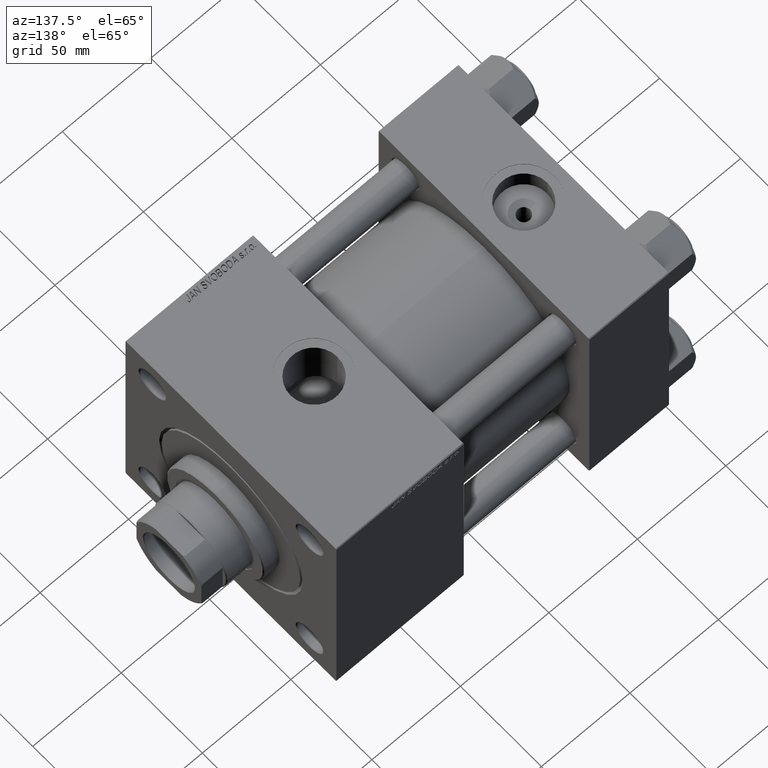
[diagram: clean part render]
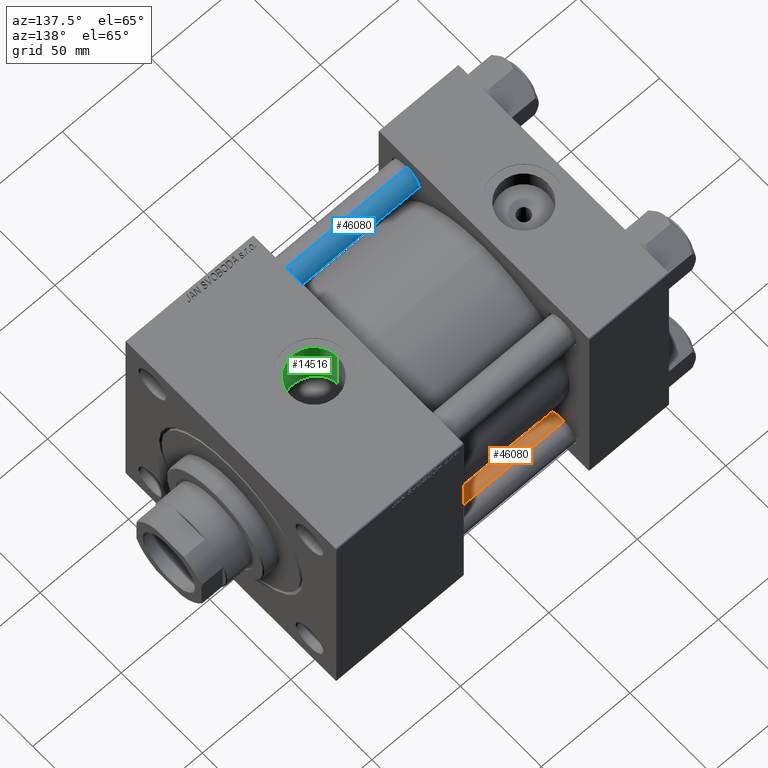
[diagram: same view with three faces highlighted in distinct colors, each labeled with its STEP entity id]
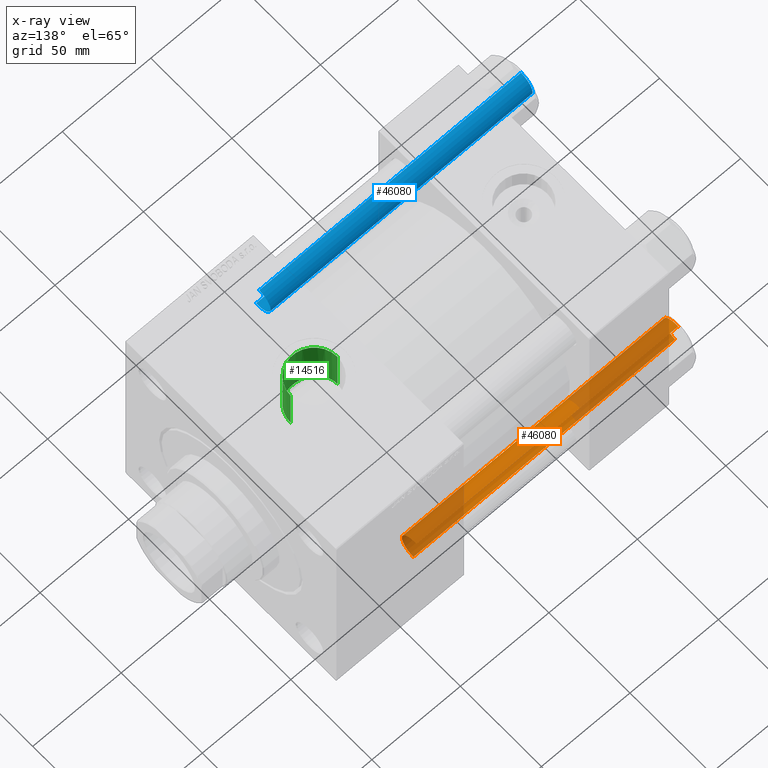
[diagram: x-ray of the same camera — body ghosted, the three highlighted faces saturated]
A machine part, auxiliary view with three faces highlighted in distinct colors.
The next image is the same camera in x-ray (body ghosted, the three faces saturated) — at least one of them is partly hidden behind the body in this view.
Their STEP definitions:

[orange] entity #46080 — the highlighted cylindrical surface (edge-blend (fillet) strip) has radius 8 mm, axis along (1, -0, 0).
#105 = EDGE_LOOP ( 'NONE', ( #20866, #13563, #15146, #23375 ) ) ;
#2549 = AXIS2_PLACEMENT_3D ( 'NONE', #16216, #46929, #34877 ) ;
#4036 = VECTOR ( 'NONE', #10144, 1000.000000000000000 ) ;
#4076 = EDGE_CURVE ( 'NONE', #34692, #27802, #25944, .T. ) ;
#5951 = DIRECTION ( 'NONE',  ( -0.000000000000000000, -0.000000000000000000, 1.000000000000000000 ) ) ;
#6333 = DIRECTION ( 'NONE',  ( 1.000000000000000000, 0.000000000000000000, 0.000000000000000000 ) ) ;
#10144 = DIRECTION ( 'NONE',  ( -0.000000000000000000, -0.000000000000000000, -1.000000000000000000 ) ) ;
#13563 = ORIENTED_EDGE ( 'NONE', *, *, #25576, .T. ) ;
#14269 = DIRECTION ( 'NONE',  ( 0.000000000000000000, 0.000000000000000000, -1.000000000000000000 ) ) ;
#14798 = CARTESIAN_POINT ( 'NONE',  ( 0.000000000000000000, 0.000000000000000000, 148.5000000000000000 ) ) ;
#15146 = ORIENTED_EDGE ( 'NONE', *, *, #17041, .T. ) ;
#16216 = CARTESIAN_POINT ( 'NONE',  ( 0.000000000000000000, 0.000000000000000000, 149.0000000000000000 ) ) ;
#17041 = EDGE_CURVE ( 'NONE', #35857, #35714, #32929, .T. ) ;
#20866 = ORIENTED_EDGE ( 'NONE', *, *, #4076, .F. ) ;
#23138 = CYLINDRICAL_SURFACE ( 'NONE', #2549, 8.000000000000000000 ) ;
#23375 = ORIENTED_EDGE ( 'NONE', *, *, #34793, .T. ) ;
#24126 = AXIS2_PLACEMENT_3D ( 'NONE', #14798, #14269, #6333 ) ;
#24443 = AXIS2_PLACEMENT_3D ( 'NONE', #48476, #5951, #37436 ) ;
#25576 = EDGE_CURVE ( 'NONE', #34692, #35857, #46162, .T. ) ;
#25882 = CARTESIAN_POINT ( 'NONE',  ( -8.000000000000000000, 0.000000000000000000, 0.5000000000000281997 ) ) ;
#25944 = LINE ( 'NONE', #26451, #45356 ) ;
#26451 = CARTESIAN_POINT ( 'NONE',  ( 8.000000000000000000, 9.797174393178825657E-16, 149.0000000000000000 ) ) ;
#27802 = VERTEX_POINT ( 'NONE', #49761 ) ;
#28791 = CARTESIAN_POINT ( 'NONE',  ( 8.000000000000000000, 9.797174393178825657E-16, 148.5000000000000000 ) ) ;
#29102 = CARTESIAN_POINT ( 'NONE',  ( -8.000000000000000000, 0.000000000000000000, 149.0000000000000000 ) ) ;
#29967 = CARTESIAN_POINT ( 'NONE',  ( -8.000000000000000000, 0.000000000000000000, 148.5000000000000000 ) ) ;
#32929 = LINE ( 'NONE', #29102, #4036 ) ;
#34692 = VERTEX_POINT ( 'NONE', #28791 ) ;
#34793 = EDGE_CURVE ( 'NONE', #35714, #27802, #43999, .T. ) ;
#34877 = DIRECTION ( 'NONE',  ( -1.000000000000000000, 0.000000000000000000, 0.000000000000000000 ) ) ;
#35714 = VERTEX_POINT ( 'NONE', #25882 ) ;
#35857 = VERTEX_POINT ( 'NONE', #29967 ) ;
#37436 = DIRECTION ( 'NONE',  ( 1.000000000000000000, 0.000000000000000000, 0.000000000000000000 ) ) ;
#39493 = FACE_OUTER_BOUND ( 'NONE', #105, .T. ) ;
#41543 = DIRECTION ( 'NONE',  ( -0.000000000000000000, -0.000000000000000000, -1.000000000000000000 ) ) ;
#43999 = CIRCLE ( 'NONE', #24443, 8.000000000000000000 ) ;
#45356 = VECTOR ( 'NONE', #41543, 1000.000000000000000 ) ;
#46080 = ADVANCED_FACE ( 'NONE', ( #39493 ), #23138, .T. ) ;
#46162 = CIRCLE ( 'NONE', #24126, 8.000000000000000000 ) ;
#46929 = DIRECTION ( 'NONE',  ( -0.000000000000000000, -0.000000000000000000, -1.000000000000000000 ) ) ;
#48476 = CARTESIAN_POINT ( 'NONE',  ( 0.000000000000000000, 0.000000000000000000, 0.5000000000000281997 ) ) ;
#49761 = CARTESIAN_POINT ( 'NONE',  ( 8.000000000000000000, 9.797174393178825657E-16, 0.5000000000000281997 ) ) ;

[blue] entity #46080 — the highlighted cylindrical surface (edge-blend (fillet) strip) has radius 8 mm, axis along (1, 0, -0).
#105 = EDGE_LOOP ( 'NONE', ( #20866, #13563, #15146, #23375 ) ) ;
#2549 = AXIS2_PLACEMENT_3D ( 'NONE', #16216, #46929, #34877 ) ;
#4036 = VECTOR ( 'NONE', #10144, 1000.000000000000000 ) ;
#4076 = EDGE_CURVE ( 'NONE', #34692, #27802, #25944, .T. ) ;
#5951 = DIRECTION ( 'NONE',  ( -0.000000000000000000, -0.000000000000000000, 1.000000000000000000 ) ) ;
#6333 = DIRECTION ( 'NONE',  ( 1.000000000000000000, 0.000000000000000000, 0.000000000000000000 ) ) ;
#10144 = DIRECTION ( 'NONE',  ( -0.000000000000000000, -0.000000000000000000, -1.000000000000000000 ) ) ;
#13563 = ORIENTED_EDGE ( 'NONE', *, *, #25576, .T. ) ;
#14269 = DIRECTION ( 'NONE',  ( 0.000000000000000000, 0.000000000000000000, -1.000000000000000000 ) ) ;
#14798 = CARTESIAN_POINT ( 'NONE',  ( 0.000000000000000000, 0.000000000000000000, 148.5000000000000000 ) ) ;
#15146 = ORIENTED_EDGE ( 'NONE', *, *, #17041, .T. ) ;
#16216 = CARTESIAN_POINT ( 'NONE',  ( 0.000000000000000000, 0.000000000000000000, 149.0000000000000000 ) ) ;
#17041 = EDGE_CURVE ( 'NONE', #35857, #35714, #32929, .T. ) ;
#20866 = ORIENTED_EDGE ( 'NONE', *, *, #4076, .F. ) ;
#23138 = CYLINDRICAL_SURFACE ( 'NONE', #2549, 8.000000000000000000 ) ;
#23375 = ORIENTED_EDGE ( 'NONE', *, *, #34793, .T. ) ;
#24126 = AXIS2_PLACEMENT_3D ( 'NONE', #14798, #14269, #6333 ) ;
#24443 = AXIS2_PLACEMENT_3D ( 'NONE', #48476, #5951, #37436 ) ;
#25576 = EDGE_CURVE ( 'NONE', #34692, #35857, #46162, .T. ) ;
#25882 = CARTESIAN_POINT ( 'NONE',  ( -8.000000000000000000, 0.000000000000000000, 0.5000000000000281997 ) ) ;
#25944 = LINE ( 'NONE', #26451, #45356 ) ;
#26451 = CARTESIAN_POINT ( 'NONE',  ( 8.000000000000000000, 9.797174393178825657E-16, 149.0000000000000000 ) ) ;
#27802 = VERTEX_POINT ( 'NONE', #49761 ) ;
#28791 = CARTESIAN_POINT ( 'NONE',  ( 8.000000000000000000, 9.797174393178825657E-16, 148.5000000000000000 ) ) ;
#29102 = CARTESIAN_POINT ( 'NONE',  ( -8.000000000000000000, 0.000000000000000000, 149.0000000000000000 ) ) ;
#29967 = CARTESIAN_POINT ( 'NONE',  ( -8.000000000000000000, 0.000000000000000000, 148.5000000000000000 ) ) ;
#32929 = LINE ( 'NONE', #29102, #4036 ) ;
#34692 = VERTEX_POINT ( 'NONE', #28791 ) ;
#34793 = EDGE_CURVE ( 'NONE', #35714, #27802, #43999, .T. ) ;
#34877 = DIRECTION ( 'NONE',  ( -1.000000000000000000, 0.000000000000000000, 0.000000000000000000 ) ) ;
#35714 = VERTEX_POINT ( 'NONE', #25882 ) ;
#35857 = VERTEX_POINT ( 'NONE', #29967 ) ;
#37436 = DIRECTION ( 'NONE',  ( 1.000000000000000000, 0.000000000000000000, 0.000000000000000000 ) ) ;
#39493 = FACE_OUTER_BOUND ( 'NONE', #105, .T. ) ;
#41543 = DIRECTION ( 'NONE',  ( -0.000000000000000000, -0.000000000000000000, -1.000000000000000000 ) ) ;
#43999 = CIRCLE ( 'NONE', #24443, 8.000000000000000000 ) ;
#45356 = VECTOR ( 'NONE', #41543, 1000.000000000000000 ) ;
#46080 = ADVANCED_FACE ( 'NONE', ( #39493 ), #23138, .T. ) ;
#46162 = CIRCLE ( 'NONE', #24126, 8.000000000000000000 ) ;
#46929 = DIRECTION ( 'NONE',  ( -0.000000000000000000, -0.000000000000000000, -1.000000000000000000 ) ) ;
#48476 = CARTESIAN_POINT ( 'NONE',  ( 0.000000000000000000, 0.000000000000000000, 0.5000000000000281997 ) ) ;
#49761 = CARTESIAN_POINT ( 'NONE',  ( 8.000000000000000000, 9.797174393178825657E-16, 0.5000000000000281997 ) ) ;

[green] entity #14516 — the highlighted cylindrical surface (edge-blend (fillet) strip) has radius 13.22 mm, axis along (0, 0, -1).
#223 = CARTESIAN_POINT ( 'NONE',  ( 146.4782435724512197, -12.03934946078301316, 36.04282310365988451 ) ) ;
#312 = VERTEX_POINT ( 'NONE', #21477 ) ;
#483 = CARTESIAN_POINT ( 'NONE',  ( 137.9796196657462986, -12.87773090805730902, 35.75153602045566714 ) ) ;
#739 = CARTESIAN_POINT ( 'NONE',  ( 142.7456559096859507, -13.11158344096582518, 35.66635002980452640 ) ) ;
#1045 = DIRECTION ( 'NONE',  ( 0.000000000000000000, 0.000000000000000000, -1.000000000000000000 ) ) ;
#1116 = LINE ( 'NONE', #16759, #37322 ) ;
#1908 = DIRECTION ( 'NONE',  ( -0.000000000000000000, -0.000000000000000000, -1.000000000000000000 ) ) ;
#2411 = LINE ( 'NONE', #26256, #33655 ) ;
#3066 = EDGE_LOOP ( 'NONE', ( #22754, #11694, #32366, #47128 ) ) ;
#3300 = CARTESIAN_POINT ( 'NONE',  ( 152.4397970194540335, -6.639918799520090786, 37.41740625442280788 ) ) ;
#4077 = CARTESIAN_POINT ( 'NONE',  ( 146.8728809038565828, -11.85173217019534952, 36.10515670412308964 ) ) ;
#4374 = FACE_OUTER_BOUND ( 'NONE', #3066, .T. ) ;
#4829 = CARTESIAN_POINT ( 'NONE',  ( 128.4812929478089814, -4.270796906997122555, 37.76155891031949352 ) ) ;
#5070 = CARTESIAN_POINT ( 'NONE',  ( 128.2275533998944468, -3.438363030112340457, 37.84643572691491897 ) ) ;
#7676 = CARTESIAN_POINT ( 'NONE',  ( 150.9556442173595201, -8.740677059352007561, 36.98644719137691084 ) ) ;
#7935 = CARTESIAN_POINT ( 'NONE',  ( 152.8513974743521260, -5.873828003563753342, 37.54529207580213779 ) ) ;
#8443 = CARTESIAN_POINT ( 'NONE',  ( 131.0465144891898888, -8.742469199936707014, 36.98594286351782756 ) ) ;
#8949 = CARTESIAN_POINT ( 'NONE',  ( 136.7207135937823637, -12.51579739097219957, 35.87998012573794426 ) ) ;
#10033 = VERTEX_POINT ( 'NONE', #33802 ) ;
#10129 = DIRECTION ( 'NONE',  ( 0.000000000000000000, 0.000000000000000000, -1.000000000000000000 ) ) ;
#11005 = CARTESIAN_POINT ( 'NONE',  ( 147.6326220741185011, -11.44388963450988861, 36.23649108421627574 ) ) ;
#11694 = ORIENTED_EDGE ( 'NONE', *, *, #30809, .T. ) ;
#11779 = CARTESIAN_POINT ( 'NONE',  ( 152.2170040446408450, -7.009391256726488884, 37.34970565330835512 ) ) ;
#12780 = CARTESIAN_POINT ( 'NONE',  ( 128.6301659401139830, -4.684389361858732670, 37.71232581984613574 ) ) ;
#13029 = CARTESIAN_POINT ( 'NONE',  ( 140.1259950468429736, -13.21980976637034821, 35.62634741005615524 ) ) ;
#13277 = CARTESIAN_POINT ( 'NONE',  ( 132.9188885453251316, -10.49813081468487397, 36.52453984831606704 ) ) ;
#14516 = ADVANCED_FACE ( 'NONE', ( #4374 ), #35357, .F. ) ;
#15087 = B_SPLINE_CURVE_WITH_KNOTS ( 'NONE', 3,
 ( #46843, #39409, #34285, #50427, #46067, #15363, #38901, #42999, #7935, #3300, #11779, #42747, #7676, #50685, #23567, #39158, #15622, #49912, #11005, #4077, #223, #15873, #31483, #42223, #739, #20220, #16631, #13029, #32729, #483, #16132, #8949, #40158, #16387, #44002, #24812, #40407, #13277, #47853, #8443, #39915, #36307, #31736, #12780, #4829, #5070, #36062, #35815, #20718, #47359 ),
 .UNSPECIFIED., .F., .F.,
 ( 4, 2, 2, 2, 2, 2, 2, 2, 2, 2, 2, 2, 2, 2, 2, 2, 2, 2, 2, 2, 2, 2, 2, 2, 4 ),
 ( 0.04166013637941431980, 0.04296170001651060388, 0.04426326365360688797, 0.04686639092779944227, 0.04816795456489571942, 0.04946951820199199656, 0.05207264547618455086, 0.05337420911328080719, 0.05467577275037705659, 0.05597733638747330598, 0.05727890002456956231, 0.05988202729876214436, 0.06118359093585843539, 0.06248515457295472642, 0.06508828184714722520, 0.06638984548424343990, 0.06769140912133964072, 0.06899297275843585542, 0.07029453639553207012, 0.07289766366972441625, 0.07550079094391676238, 0.07810391821810910851, 0.07940548185520529545, 0.08070704549230148239, 0.08331017276649385628 ),
 .UNSPECIFIED. ) ;
#15363 = CARTESIAN_POINT ( 'NONE',  ( 153.7898933475007368, -3.457103395810896984, 37.85217114880580880 ) ) ;
#15622 = CARTESIAN_POINT ( 'NONE',  ( 148.7112000881219274, -10.74657551968731894, 36.44959486194038334 ) ) ;
#15873 = CARTESIAN_POINT ( 'NONE',  ( 145.2750330391422722, -12.53982634752478376, 35.87306630407024244 ) ) ;
#16132 = CARTESIAN_POINT ( 'NONE',  ( 137.5524066216052290, -12.76994817434878726, 35.79031407768953699 ) ) ;
#16387 = CARTESIAN_POINT ( 'NONE',  ( 135.5183302839741657, -12.03766808401159061, 36.04337908659653067 ) ) ;
#16631 = CARTESIAN_POINT ( 'NONE',  ( 141.4326792024295685, -13.22009464554154157, 35.62624169868585255 ) ) ;
#16759 = CARTESIAN_POINT ( 'NONE',  ( 154.2199999999999704, -5.319910835434425649E-15, 87.79999999999998295 ) ) ;
#20220 = CARTESIAN_POINT ( 'NONE',  ( 141.8723927295873182, -13.19847967797026378, 35.63428516145866354 ) ) ;
#20308 = AXIS2_PLACEMENT_3D ( 'NONE', #35999, #1908, #47788 ) ;
#20718 = CARTESIAN_POINT ( 'NONE',  ( 127.7799999999999159, -0.8806923098730364829, 38.00000000000000000 ) ) ;
#20845 = DIRECTION ( 'NONE',  ( 0.000000000000000000, 0.000000000000000000, -1.000000000000000000 ) ) ;
#21477 = CARTESIAN_POINT ( 'NONE',  ( 127.7799999999999443, -6.938893903907228378E-15, 64.79999999999999716 ) ) ;
#22754 = ORIENTED_EDGE ( 'NONE', *, *, #37453, .F. ) ;
#23567 = CARTESIAN_POINT ( 'NONE',  ( 149.7181326617185277, -9.947193327566822063, 36.67605766239145026 ) ) ;
#24812 = CARTESIAN_POINT ( 'NONE',  ( 134.3687764406139706, -11.44471565151262027, 36.23623107043739111 ) ) ;
#26256 = CARTESIAN_POINT ( 'NONE',  ( 127.7799999999999443, -6.938893903907228378E-15, 87.79999999999998295 ) ) ;
#28528 = AXIS2_PLACEMENT_3D ( 'NONE', #39460, #1045, #32286 ) ;
#30809 = EDGE_CURVE ( 'NONE', #35708, #44948, #1116, .T. ) ;
#31483 = CARTESIAN_POINT ( 'NONE',  ( 144.4495851385500771, -12.79134790663831289, 35.78287656103340453 ) ) ;
#31736 = CARTESIAN_POINT ( 'NONE',  ( 129.1303169840666385, -5.884778547379711178, 37.55025261154999328 ) ) ;
#32286 = DIRECTION ( 'NONE',  ( -1.000000000000000000, 0.000000000000000000, 0.000000000000000000 ) ) ;
#32366 = ORIENTED_EDGE ( 'NONE', *, *, #33986, .T. ) ;
#32729 = CARTESIAN_POINT ( 'NONE',  ( 139.2627406286982819, -13.13435695770243505, 35.65840422616734884 ) ) ;
#33655 = VECTOR ( 'NONE', #10129, 1000.000000000000000 ) ;
#33802 = CARTESIAN_POINT ( 'NONE',  ( 127.7799999999999443, -1.705649605790996834E-14, 38.00000000000000000 ) ) ;
#33986 = EDGE_CURVE ( 'NONE', #44948, #10033, #15087, .T. ) ;
#34285 = CARTESIAN_POINT ( 'NONE',  ( 154.1987059586643625, -0.8674709142124991113, 37.99257584974373003 ) ) ;
#35357 = CYLINDRICAL_SURFACE ( 'NONE', #28528, 13.22000000000000952 ) ;
#35692 = CARTESIAN_POINT ( 'NONE',  ( 154.2199999999999704, 4.637117530598473618E-15, 38.00000000000000000 ) ) ;
#35708 = VERTEX_POINT ( 'NONE', #45062 ) ;
#35815 = CARTESIAN_POINT ( 'NONE',  ( 127.8671918229332363, -1.745414377666256067, 37.96941922619534893 ) ) ;
#35999 = CARTESIAN_POINT ( 'NONE',  ( 140.9999999999999716, -6.938893903907228378E-15, 64.79999999999999716 ) ) ;
#36062 = CARTESIAN_POINT ( 'NONE',  ( 128.1218574587036869, -3.018116163669616103, 37.88234142385709902 ) ) ;
#36307 = CARTESIAN_POINT ( 'NONE',  ( 129.5366543245823721, -6.640574814902511669, 37.42234088228876487 ) ) ;
#37322 = VECTOR ( 'NONE', #20845, 1000.000000000000000 ) ;
#37453 = EDGE_CURVE ( 'NONE', #35708, #312, #49721, .T. ) ;
#38901 = CARTESIAN_POINT ( 'NONE',  ( 153.5364557683052738, -4.284030264507110886, 37.76632752134766946 ) ) ;
#39158 = CARTESIAN_POINT ( 'NONE',  ( 149.0547857156411169, -10.49156419598225298, 36.52405976165076140 ) ) ;
#39409 = CARTESIAN_POINT ( 'NONE',  ( 154.2199999999999989, -0.4337437505172540564, 38.00000000000000711 ) ) ;
#39460 = CARTESIAN_POINT ( 'NONE',  ( 140.9999999999999716, -6.938893903907228378E-15, 87.79999999999998295 ) ) ;
#39915 = CARTESIAN_POINT ( 'NONE',  ( 130.4918572515577750, -8.067494277952352633, 37.14087192107564306 ) ) ;
#40158 = CARTESIAN_POINT ( 'NONE',  ( 136.3140330566430976, -12.36914991348206705, 35.93097214519448812 ) ) ;
#40407 = CARTESIAN_POINT ( 'NONE',  ( 133.9953957010816055, -11.22009789849683514, 36.30664668599281697 ) ) ;
#42223 = CARTESIAN_POINT ( 'NONE',  ( 143.1760833258858554, -13.04685847562520706, 35.69016241178666604 ) ) ;
#42747 = CARTESIAN_POINT ( 'NONE',  ( 151.4993199431267499, -8.078988973956770181, 37.13836627900155918 ) ) ;
#42999 = CARTESIAN_POINT ( 'NONE',  ( 153.0379994176830962, -5.481038191285668937, 37.60479122113158468 ) ) ;
#44002 = CARTESIAN_POINT ( 'NONE',  ( 135.1293090638948229, -11.85283215823403147, 36.10479647308432760 ) ) ;
#44948 = VERTEX_POINT ( 'NONE', #35692 ) ;
#45062 = CARTESIAN_POINT ( 'NONE',  ( 154.2199999999999704, -5.319910835434425649E-15, 64.79999999999999716 ) ) ;
#46067 = CARTESIAN_POINT ( 'NONE',  ( 154.0478214865652831, -2.171149093721318923, 37.94035737515905282 ) ) ;
#46843 = CARTESIAN_POINT ( 'NONE',  ( 154.2199999999999704, 4.637117530598473618E-15, 38.00000000000000000 ) ) ;
#47128 = ORIENTED_EDGE ( 'NONE', *, *, #50609, .F. ) ;
#47359 = CARTESIAN_POINT ( 'NONE',  ( 127.7799999999999443, -1.705649605790996834E-14, 38.00000000000000000 ) ) ;
#47788 = DIRECTION ( 'NONE',  ( 1.000000000000000000, 0.000000000000000000, 0.000000000000000000 ) ) ;
#47853 = CARTESIAN_POINT ( 'NONE',  ( 132.2583757459181584, -9.954227590636893552, 36.67838723675089341 ) ) ;
#49721 = CIRCLE ( 'NONE', #20308, 13.22000000000000952 ) ;
#49912 = CARTESIAN_POINT ( 'NONE',  ( 148.0001176554769700, -11.22273785708610916, 36.30581228937123939 ) ) ;
#50427 = CARTESIAN_POINT ( 'NONE',  ( 154.1129133219709502, -1.734891633723171234, 37.96285653773661295 ) ) ;
#50609 = EDGE_CURVE ( 'NONE', #312, #10033, #2411, .T. ) ;
#50685 = CARTESIAN_POINT ( 'NONE',  ( 150.0392933096980528, -9.656399342968336796, 36.75395393087959661 ) ) ;